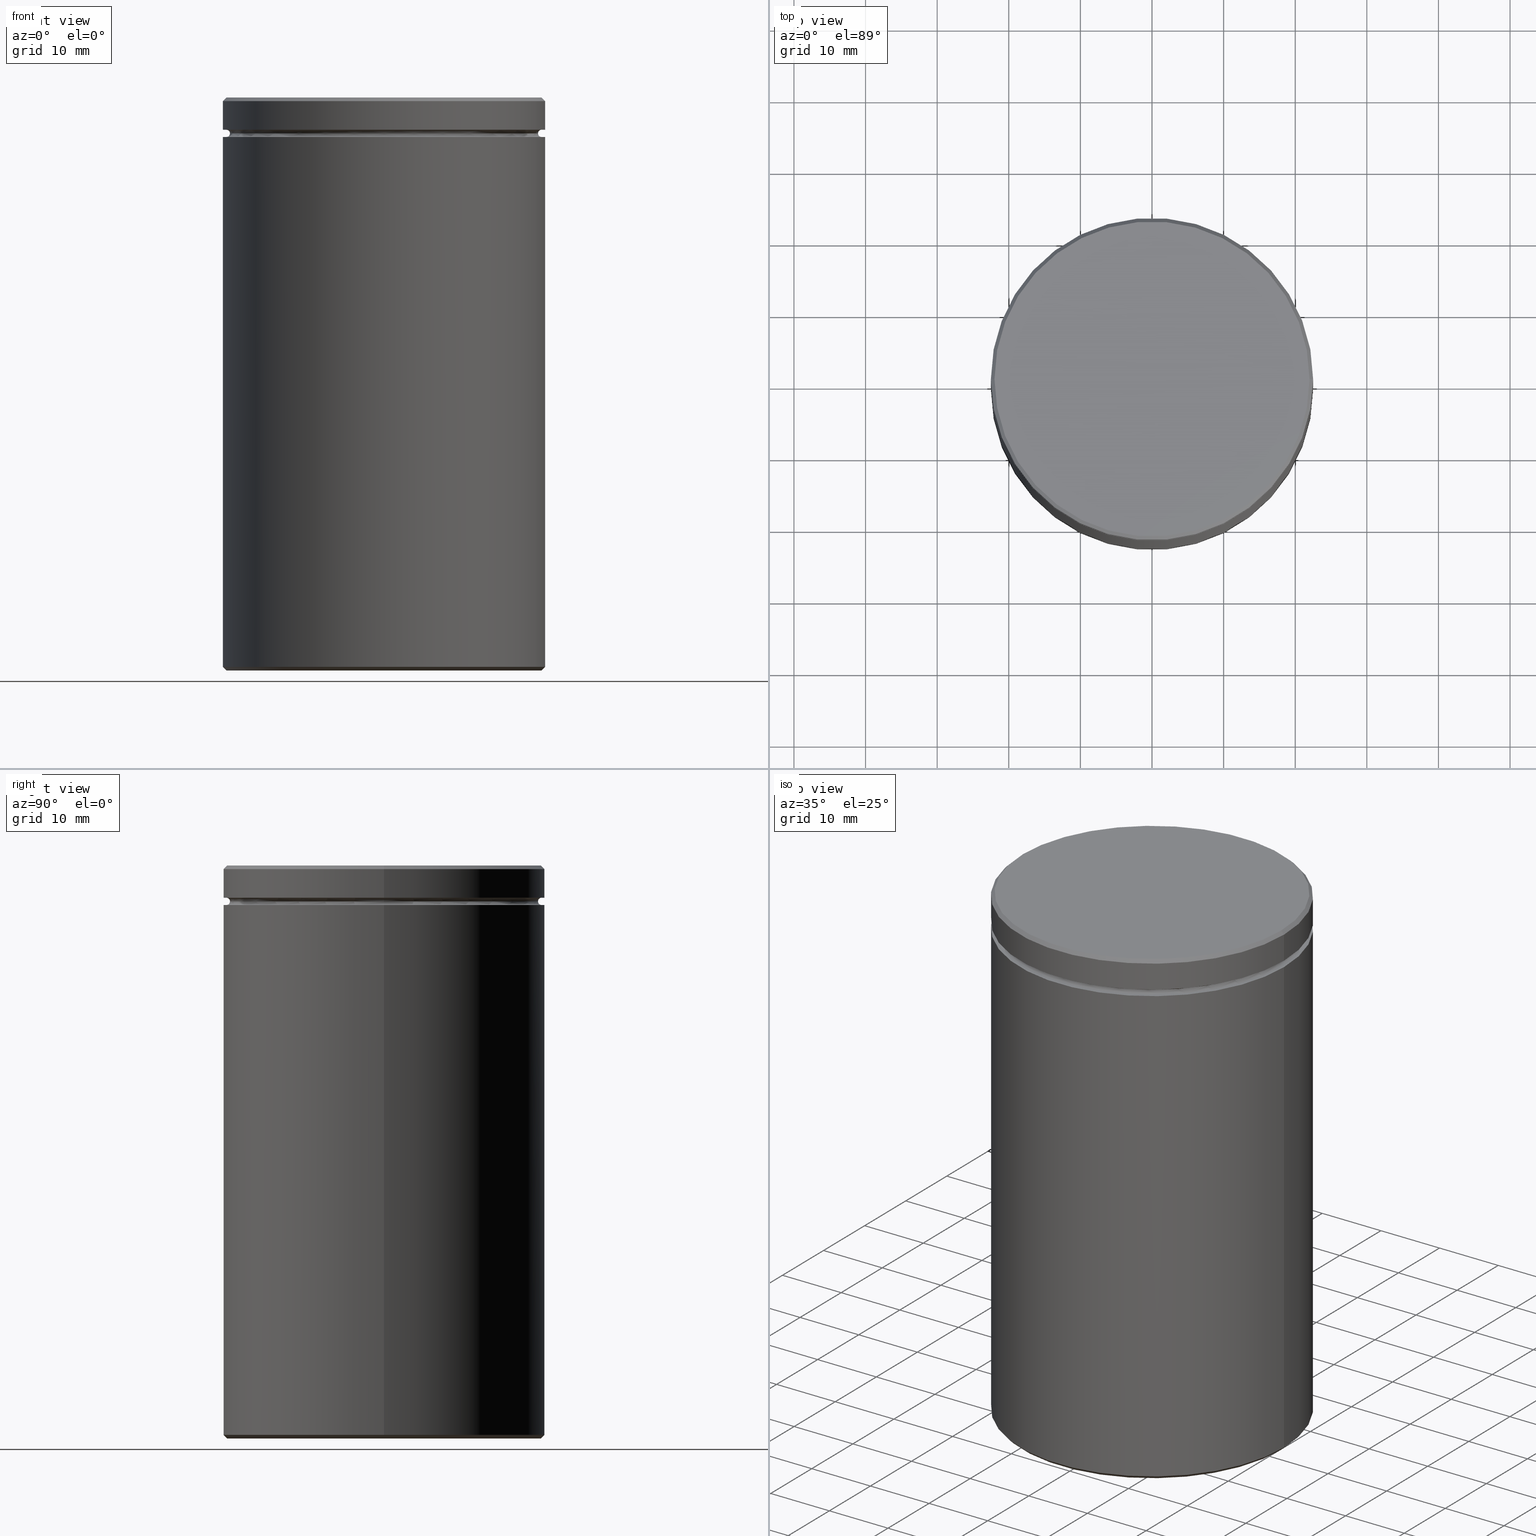
[diagram: canonical four-view strip — front | top / right | iso, engineering-drawing reading convention]
A machine part, canonical four-view strip (front | top / right | iso — engineering-drawing reading convention). The complete STEP part file that produces these views, byte-faithful:
ISO-10303-21;
HEADER;
FILE_DESCRIPTION (( 'STEP AP203' ),
    '1' );
FILE_NAME ('1421.STEP',
    '2024-01-02T17:55:48',
    ( '' ),
    ( '' ),
    'SwSTEP 2.0',
    'SolidWorks 2019',
    '' );
FILE_SCHEMA (( 'CONFIG_CONTROL_DESIGN' ));
ENDSEC;

DATA;
#1 = CARTESIAN_POINT ( 'NONE',  ( -22.50000000000000000, 2.755455298081544778E-15, 0.000000000000000000 ) ) ;
#2 = CARTESIAN_POINT ( 'NONE',  ( -21.99999999999999289, 0.000000000000000000, 0.000000000000000000 ) ) ;
#3 = EDGE_CURVE ( 'NONE', #138, #230, #540, .T. ) ;
#4 = EDGE_LOOP ( 'NONE', ( #280, #177, #48, #162 ) ) ;
#5 = FACE_BOUND ( 'NONE', #77, .T. ) ;
#6 = CARTESIAN_POINT ( 'NONE',  ( -22.50000000000000000, 2.755455298081544778E-15, -79.49999999999998579 ) ) ;
#7 = ORIENTED_EDGE ( 'NONE', *, *, #497, .F. ) ;
#8 = DIRECTION ( 'NONE',  ( -1.000000000000000000, 0.000000000000000000, 0.000000000000000000 ) ) ;
#9 = EDGE_LOOP ( 'NONE', ( #533, #306, #493, #554 ) ) ;
#10 = CYLINDRICAL_SURFACE ( 'NONE', #100, 22.50000000000000000 ) ;
#11 = CARTESIAN_POINT ( 'NONE',  ( 0.000000000000000000, 0.000000000000000000, 0.000000000000000000 ) ) ;
#12 = EDGE_CURVE ( 'NONE', #93, #368, #238, .T. ) ;
#13 = APPLICATION_CONTEXT ( 'configuration controlled 3d designs of mechanical parts and assemblies' ) ;
#14 = LINE ( 'NONE', #215, #108 ) ;
#15 = AXIS2_PLACEMENT_3D ( 'NONE', #420, #498, #107 ) ;
#16 = ORIENTED_EDGE ( 'NONE', *, *, #86, .F. ) ;
#17 = FACE_OUTER_BOUND ( 'NONE', #372, .T. ) ;
#18 = EDGE_LOOP ( 'NONE', ( #480, #236, #47, #139 ) ) ;
#19 = FACE_OUTER_BOUND ( 'NONE', #9, .T. ) ;
#20 = ORIENTED_EDGE ( 'NONE', *, *, #257, .F. ) ;
#21 = DIRECTION ( 'NONE',  ( -0.000000000000000000, -0.000000000000000000, 1.000000000000000000 ) ) ;
#22 = EDGE_CURVE ( 'NONE', #368, #93, #188, .T. ) ;
#23 = DATE_TIME_ROLE ( 'creation_date' ) ;
#24 = DIRECTION ( 'NONE',  ( 1.000000000000000000, 0.000000000000000000, 0.000000000000000000 ) ) ;
#25 = CARTESIAN_POINT ( 'NONE',  ( 0.000000000000000000, 0.000000000000000000, -80.00000000000000000 ) ) ;
#26 = DIRECTION ( 'NONE',  ( -1.000000000000000000, 0.000000000000000000, 0.000000000000000000 ) ) ;
#27 = ORIENTED_EDGE ( 'NONE', *, *, #334, .F. ) ;
#28 = APPROVAL_DATE_TIME ( #70, #156 ) ;
#29 = EDGE_CURVE ( 'NONE', #403, #329, #89, .T. ) ;
#30 = CARTESIAN_POINT ( 'NONE',  ( 0.000000000000000000, 0.000000000000000000, -4.999999999999999112 ) ) ;
#31 = CONICAL_SURFACE ( 'NONE', #549, 21.99999999999999289, 0.7853981633974482790 ) ;
#32 = ORIENTED_EDGE ( 'NONE', *, *, #240, .T. ) ;
#33 = DIRECTION ( 'NONE',  ( -0.000000000000000000, -0.000000000000000000, 1.000000000000000000 ) ) ;
#34 = CARTESIAN_POINT ( 'NONE',  ( -22.50000000000000000, 2.755455298081544778E-15, -5.500000000000000000 ) ) ;
#35 = EDGE_CURVE ( 'NONE', #41, #400, #505, .T. ) ;
#36 = ORIENTED_EDGE ( 'NONE', *, *, #191, .T. ) ;
#37 = DIRECTION ( 'NONE',  ( 1.000000000000000000, 0.000000000000000000, 0.000000000000000000 ) ) ;
#38 = EDGE_LOOP ( 'NONE', ( #20, #175, #522, #44 ) ) ;
#39 = AXIS2_PLACEMENT_3D ( 'NONE', #94, #237, #62 ) ;
#40 = DIRECTION ( 'NONE',  ( -1.000000000000000000, 0.000000000000000000, 0.000000000000000000 ) ) ;
#41 = VERTEX_POINT ( 'NONE', #121 ) ;
#42 = CARTESIAN_POINT ( 'NONE',  ( 0.000000000000000000, 0.000000000000000000, -79.49999999999998579 ) ) ;
#43 = CARTESIAN_POINT ( 'NONE',  ( 0.000000000000000000, 0.000000000000000000, 0.000000000000000000 ) ) ;
#44 = ORIENTED_EDGE ( 'NONE', *, *, #531, .T. ) ;
#45 = EDGE_CURVE ( 'NONE', #130, #136, #416, .T. ) ;
#46 = DIRECTION ( 'NONE',  ( -0.000000000000000000, -0.000000000000000000, 1.000000000000000000 ) ) ;
#47 = ORIENTED_EDGE ( 'NONE', *, *, #463, .T. ) ;
#48 = ORIENTED_EDGE ( 'NONE', *, *, #35, .F. ) ;
#49 = TOROIDAL_SURFACE ( 'NONE', #269, 22.00000000000000000, 0.5000000000000000000 ) ;
#50 = CIRCLE ( 'NONE', #436, 22.50000000000000000 ) ;
#51 = CIRCLE ( 'NONE', #569, 22.00000000000000000 ) ;
#52 = EDGE_LOOP ( 'NONE', ( #550, #263, #319, #476 ) ) ;
#53 = DIRECTION ( 'NONE',  ( 1.000000000000000000, 0.000000000000000000, 0.000000000000000000 ) ) ;
#54 = EDGE_CURVE ( 'NONE', #184, #514, #349, .T. ) ;
#55 = CARTESIAN_POINT ( 'NONE',  ( -22.00000000000000000, 2.694222958124176809E-15, -5.500000000000000000 ) ) ;
#56 = AXIS2_PLACEMENT_3D ( 'NONE', #165, #68, #388 ) ;
#57 = CONICAL_SURFACE ( 'NONE', #271, 22.50000000000000000, 0.7853981633974346233 ) ;
#58 = CARTESIAN_POINT ( 'NONE',  ( 0.000000000000000000, 0.000000000000000000, -5.500000000000000000 ) ) ;
#59 = DIRECTION ( 'NONE',  ( -1.000000000000000000, 0.000000000000000000, 0.000000000000000000 ) ) ;
#60 = DIRECTION ( 'NONE',  ( 0.000000000000000000, 0.000000000000000000, 1.000000000000000000 ) ) ;
#61 = PLANE ( 'NONE',  #147 ) ;
#62 = DIRECTION ( 'NONE',  ( -1.000000000000000000, 0.000000000000000000, -0.000000000000000000 ) ) ;
#63 = CC_DESIGN_PERSON_AND_ORGANIZATION_ASSIGNMENT ( #163, #394, ( #118 ) ) ;
#64 = DATE_TIME_ROLE ( 'classification_date' ) ;
#65 = CARTESIAN_POINT ( 'NONE',  ( 0.000000000000000000, 0.000000000000000000, -4.999999999999999112 ) ) ;
#66 = CYLINDRICAL_SURFACE ( 'NONE', #457, 22.50000000000000000 ) ;
#67 = COORDINATED_UNIVERSAL_TIME_OFFSET ( 1, 0, .AHEAD. ) ;
#68 = DIRECTION ( 'NONE',  ( -0.000000000000000000, -0.000000000000000000, -1.000000000000000000 ) ) ;
#69 = ADVANCED_FACE ( 'NONE', ( #299 ), #49, .F. ) ;
#70 = DATE_AND_TIME ( #250, #203 ) ;
#71 = CARTESIAN_POINT ( 'NONE',  ( 15.50000000000000000, 1.898202538678397557E-15, -80.00000000000000000 ) ) ;
#72 = CARTESIAN_POINT ( 'NONE',  ( -22.00000000000000000, 2.724839128102860991E-15, -80.00000000000000000 ) ) ;
#73 = CARTESIAN_POINT ( 'NONE',  ( 22.00000000000000000, 2.694222958124176809E-15, -5.000000000000000888 ) ) ;
#74 = VECTOR ( 'NONE', #389, 1000.000000000000000 ) ;
#75 = DIRECTION ( 'NONE',  ( 0.000000000000000000, 0.000000000000000000, -1.000000000000000000 ) ) ;
#76 = DIRECTION ( 'NONE',  ( -0.000000000000000000, -0.000000000000000000, 1.000000000000000000 ) ) ;
#77 = EDGE_LOOP ( 'NONE', ( #455, #7 ) ) ;
#78 = CARTESIAN_POINT ( 'NONE',  ( 0.000000000000000000, 0.000000000000000000, -80.00000000000000000 ) ) ;
#79 = CARTESIAN_POINT ( 'NONE',  ( 15.50000000000000000, 1.898202538678397557E-15, -29.00000000000000355 ) ) ;
#80 = EDGE_LOOP ( 'NONE', ( #469, #353, #207, #87 ) ) ;
#81 = DIRECTION ( 'NONE',  ( -0.000000000000000000, -0.000000000000000000, 1.000000000000000000 ) ) ;
#82 = CIRCLE ( 'NONE', #562, 0.5000000000000004441 ) ;
#83 = AXIS2_PLACEMENT_3D ( 'NONE', #537, #151, #143 ) ;
#84 = LOCAL_TIME ( 18, 55, 48.00000000000000000, #111 ) ;
#85 = ORIENTED_EDGE ( 'NONE', *, *, #397, .T. ) ;
#86 = EDGE_CURVE ( 'NONE', #170, #396, #303, .T. ) ;
#87 = ORIENTED_EDGE ( 'NONE', *, *, #283, .F. ) ;
#88 = ORIENTED_EDGE ( 'NONE', *, *, #54, .F. ) ;
#89 = CIRCLE ( 'NONE', #332, 21.99999999999999289 ) ;
#90 = AXIS2_PLACEMENT_3D ( 'NONE', #78, #517, #200 ) ;
#91 = LINE ( 'NONE', #1, #527 ) ;
#92 = ADVANCED_FACE ( 'NONE', ( #309 ), #146, .F. ) ;
#93 = VERTEX_POINT ( 'NONE', #79 ) ;
#94 = CARTESIAN_POINT ( 'NONE',  ( 0.000000000000000000, 22.50000000000000000, -4.500000000000000888 ) ) ;
#95 = DIRECTION ( 'NONE',  ( -0.000000000000000000, -0.000000000000000000, 1.000000000000000000 ) ) ;
#96 = EDGE_LOOP ( 'NONE', ( #534, #323, #218, #418 ) ) ;
#97 = EDGE_LOOP ( 'NONE', ( #410, #486, #331, #489 ) ) ;
#98 = PERSON_AND_ORGANIZATION ( #219, #564 ) ;
#99 = DIRECTION ( 'NONE',  ( -1.000000000000000000, 0.000000000000000000, 0.000000000000000000 ) ) ;
#100 = AXIS2_PLACEMENT_3D ( 'NONE', #187, #142, #328 ) ;
#101 = FACE_OUTER_BOUND ( 'NONE', #406, .T. ) ;
#102 = CARTESIAN_POINT ( 'NONE',  ( 0.000000000000000000, 0.000000000000000000, -29.00000000000000355 ) ) ;
#103 = CC_DESIGN_DATE_AND_TIME_ASSIGNMENT ( #150, #23, ( #511 ) ) ;
#104 = DIRECTION ( 'NONE',  ( 0.000000000000000000, 0.000000000000000000, -1.000000000000000000 ) ) ;
#105 = PERSON_AND_ORGANIZATION ( #219, #564 ) ;
#106 = CARTESIAN_POINT ( 'NONE',  ( 0.000000000000000000, 0.000000000000000000, -5.000000000000000888 ) ) ;
#107 = DIRECTION ( 'NONE',  ( 1.000000000000000000, 0.000000000000000000, 0.000000000000000000 ) ) ;
#108 = VECTOR ( 'NONE', #322, 1000.000000000000000 ) ;
#109 = EDGE_CURVE ( 'NONE', #130, #333, #82, .T. ) ;
#110 = CC_DESIGN_APPROVAL ( #473, ( #118 ) ) ;
#111 = COORDINATED_UNIVERSAL_TIME_OFFSET ( 1, 0, .AHEAD. ) ;
#112 = FACE_OUTER_BOUND ( 'NONE', #18, .T. ) ;
#113 = DIRECTION ( 'NONE',  ( 0.000000000000000000, 0.000000000000000000, -1.000000000000000000 ) ) ;
#114 = CARTESIAN_POINT ( 'NONE',  ( 0.000000000000000000, 0.000000000000000000, -29.00000000000000355 ) ) ;
#115 = DIRECTION ( 'NONE',  ( 0.000000000000000000, 0.000000000000000000, -1.000000000000000000 ) ) ;
#116 = DIRECTION ( 'NONE',  ( -1.000000000000000000, 0.000000000000000000, 0.000000000000000000 ) ) ;
#117 = CIRCLE ( 'NONE', #90, 15.50000000000000000 ) ;
#118 = PRODUCT_DEFINITION_FORMATION_WITH_SPECIFIED_SOURCE ( 'LIBOVOLN�', '', #251, .NOT_KNOWN. ) ;
#119 = CARTESIAN_POINT ( 'NONE',  ( -22.50000000000000000, 2.755455298081544778E-15, -4.500000000000000888 ) ) ;
#120 = EDGE_CURVE ( 'NONE', #403, #400, #355, .T. ) ;
#121 = CARTESIAN_POINT ( 'NONE',  ( -22.50000000000000000, 2.755455298081544778E-15, -0.5000000000000073275 ) ) ;
#122 = EDGE_LOOP ( 'NONE', ( #427, #267, #525, #520 ) ) ;
#123 = DIRECTION ( 'NONE',  ( -1.000000000000000000, 0.000000000000000000, 0.000000000000000000 ) ) ;
#124 = EDGE_LOOP ( 'NONE', ( #384, #235 ) ) ;
#125 = CARTESIAN_POINT ( 'NONE',  ( 0.000000000000000000, 0.000000000000000000, 0.000000000000000000 ) ) ;
#126 = ADVANCED_FACE ( 'NONE', ( #552 ), #556, .F. ) ;
#127 = CIRCLE ( 'NONE', #168, 22.00000000000000000 ) ;
#128 = EDGE_LOOP ( 'NONE', ( #414, #510, #445, #277 ) ) ;
#129 = APPROVAL_PERSON_ORGANIZATION ( #431, #156, #467 ) ;
#130 = VERTEX_POINT ( 'NONE', #252 ) ;
#131 = CYLINDRICAL_SURFACE ( 'NONE', #316, 22.50000000000000000 ) ;
#132 = ORIENTED_EDGE ( 'NONE', *, *, #152, .T. ) ;
#133 = COORDINATED_UNIVERSAL_TIME_OFFSET ( 1, 0, .AHEAD. ) ;
#134 = ORIENTED_EDGE ( 'NONE', *, *, #35, .T. ) ;
#135 = PLANE ( 'NONE',  #278 ) ;
#136 = VERTEX_POINT ( 'NONE', #346 ) ;
#137 = EDGE_CURVE ( 'NONE', #230, #138, #127, .T. ) ;
#138 = VERTEX_POINT ( 'NONE', #72 ) ;
#139 = ORIENTED_EDGE ( 'NONE', *, *, #531, .F. ) ;
#140 = AXIS2_PLACEMENT_3D ( 'NONE', #155, #256, #507 ) ;
#141 = PRODUCT_RELATED_PRODUCT_CATEGORY ( 'detail', '', ( #251 ) ) ;
#142 = DIRECTION ( 'NONE',  ( -0.000000000000000000, -0.000000000000000000, 1.000000000000000000 ) ) ;
#143 = DIRECTION ( 'NONE',  ( -1.000000000000000000, 0.000000000000000000, 0.000000000000000000 ) ) ;
#144 = DIRECTION ( 'NONE',  ( 0.000000000000000000, 0.000000000000000000, -1.000000000000000000 ) ) ;
#145 = EDGE_CURVE ( 'NONE', #514, #184, #201, .T. ) ;
#146 = TOROIDAL_SURFACE ( 'NONE', #192, 22.00000000000000000, 0.5000000000000000000 ) ;
#147 = AXIS2_PLACEMENT_3D ( 'NONE', #190, #501, #375 ) ;
#148 = CC_DESIGN_SECURITY_CLASSIFICATION ( #259, ( #118 ) ) ;
#149 = DIRECTION ( 'NONE',  ( 0.000000000000000000, 0.000000000000000000, -1.000000000000000000 ) ) ;
#150 = DATE_AND_TIME ( #424, #386 ) ;
#151 = DIRECTION ( 'NONE',  ( -0.000000000000000000, -0.000000000000000000, 1.000000000000000000 ) ) ;
#152 = EDGE_CURVE ( 'NONE', #396, #333, #359, .T. ) ;
#153 = APPROVAL_STATUS ( 'not_yet_approved' ) ;
#154 = APPROVAL_DATE_TIME ( #413, #473 ) ;
#155 = CARTESIAN_POINT ( 'NONE',  ( 0.000000000000000000, 0.000000000000000000, 0.000000000000000000 ) ) ;
#156 = APPROVAL ( #244, 'NEUR�EN�' ) ;
#157 = DIRECTION ( 'NONE',  ( -0.000000000000000000, -0.000000000000000000, 1.000000000000000000 ) ) ;
#158 = LOCAL_TIME ( 18, 55, 48.00000000000000000, #133 ) ;
#159 = COORDINATED_UNIVERSAL_TIME_OFFSET ( 1, 0, .AHEAD. ) ;
#160 = FACE_OUTER_BOUND ( 'NONE', #182, .T. ) ;
#161 = DIRECTION ( 'NONE',  ( -0.000000000000000000, -0.000000000000000000, 1.000000000000000000 ) ) ;
#162 = ORIENTED_EDGE ( 'NONE', *, *, #463, .F. ) ;
#163 = PERSON_AND_ORGANIZATION ( #219, #564 ) ;
#164 =( NAMED_UNIT ( * ) PLANE_ANGLE_UNIT ( ) SI_UNIT ( $, .RADIAN. ) );
#165 = CARTESIAN_POINT ( 'NONE',  ( 0.000000000000000000, 0.000000000000000000, -29.00000000000000355 ) ) ;
#166 = CARTESIAN_POINT ( 'NONE',  ( 22.50000000000000000, 0.000000000000000000, -79.49999999999998579 ) ) ;
#167 = EDGE_CURVE ( 'NONE', #170, #130, #314, .T. ) ;
#168 = AXIS2_PLACEMENT_3D ( 'NONE', #546, #113, #297 ) ;
#169 = TOROIDAL_SURFACE ( 'NONE', #178, 22.00000000000000000, 0.5000000000000000000 ) ;
#170 = VERTEX_POINT ( 'NONE', #444 ) ;
#171 = DIRECTION ( 'NONE',  ( 0.000000000000000000, 0.000000000000000000, -1.000000000000000000 ) ) ;
#172 = EDGE_LOOP ( 'NONE', ( #233, #132 ) ) ;
#173 = EDGE_CURVE ( 'NONE', #197, #409, #91, .T. ) ;
#174 = LINE ( 'NONE', #357, #499 ) ;
#175 = ORIENTED_EDGE ( 'NONE', *, *, #145, .T. ) ;
#176 = AXIS2_PLACEMENT_3D ( 'NONE', #330, #149, #99 ) ;
#177 = ORIENTED_EDGE ( 'NONE', *, *, #120, .T. ) ;
#178 = AXIS2_PLACEMENT_3D ( 'NONE', #106, #288, #461 ) ;
#179 = LINE ( 'NONE', #274, #506 ) ;
#180 = ORIENTED_EDGE ( 'NONE', *, *, #137, .F. ) ;
#181 = DIRECTION ( 'NONE',  ( -0.000000000000000000, -0.000000000000000000, 1.000000000000000000 ) ) ;
#182 = EDGE_LOOP ( 'NONE', ( #186, #434, #134, #356 ) ) ;
#183 = CARTESIAN_POINT ( 'NONE',  ( 0.000000000000000000, 0.000000000000000000, -4.999999999999999112 ) ) ;
#184 = VERTEX_POINT ( 'NONE', #452 ) ;
#185 = EDGE_CURVE ( 'NONE', #93, #488, #179, .T. ) ;
#186 = ORIENTED_EDGE ( 'NONE', *, *, #54, .T. ) ;
#187 = CARTESIAN_POINT ( 'NONE',  ( 0.000000000000000000, 0.000000000000000000, 0.000000000000000000 ) ) ;
#188 = CIRCLE ( 'NONE', #291, 15.50000000000000000 ) ;
#189 = AXIS2_PLACEMENT_3D ( 'NONE', #58, #460, #423 ) ;
#190 = CARTESIAN_POINT ( 'NONE',  ( 0.000000000000000000, 21.50000000000000000, -5.500000000000000000 ) ) ;
#191 = EDGE_CURVE ( 'NONE', #450, #312, #234, .T. ) ;
#192 = AXIS2_PLACEMENT_3D ( 'NONE', #475, #433, #210 ) ;
#193 = CIRCLE ( 'NONE', #258, 22.50000000000000000 ) ;
#194 = FACE_OUTER_BOUND ( 'NONE', #495, .T. ) ;
#195 = PERSON_AND_ORGANIZATION ( #219, #564 ) ;
#196 = ADVANCED_FACE ( 'NONE', ( #311 ), #57, .T. ) ;
#197 = VERTEX_POINT ( 'NONE', #6 ) ;
#198 = CARTESIAN_POINT ( 'NONE',  ( 0.000000000000000000, 0.000000000000000000, -4.500000000000000888 ) ) ;
#199 = SHAPE_DEFINITION_REPRESENTATION ( #302, #208 ) ;
#200 = DIRECTION ( 'NONE',  ( -1.000000000000000000, 0.000000000000000000, 0.000000000000000000 ) ) ;
#201 = CIRCLE ( 'NONE', #526, 22.50000000000000000 ) ;
#202 = CIRCLE ( 'NONE', #15, 22.50000000000000000 ) ;
#203 = LOCAL_TIME ( 18, 55, 48.00000000000000000, #159 ) ;
#204 = DIRECTION ( 'NONE',  ( -1.000000000000000000, -1.224646799147349509E-16, 0.000000000000000000 ) ) ;
#205 = CARTESIAN_POINT ( 'NONE',  ( 0.000000000000000000, 0.000000000000000000, -5.500000000000000000 ) ) ;
#206 = APPLICATION_PROTOCOL_DEFINITION ( 'international standard', 'config_control_design', 1994, #13 ) ;
#207 = ORIENTED_EDGE ( 'NONE', *, *, #497, .T. ) ;
#208 = ADVANCED_BREP_SHAPE_REPRESENTATION ( '1421', ( #324, #318 ), #379 ) ;
#209 = CC_DESIGN_PERSON_AND_ORGANIZATION_ASSIGNMENT ( #105, #243, ( #511 ) ) ;
#210 = DIRECTION ( 'NONE',  ( -1.000000000000000000, 0.000000000000000000, 0.000000000000000000 ) ) ;
#211 = CARTESIAN_POINT ( 'NONE',  ( 22.50000000000000000, 0.000000000000000000, -0.5000000000000073275 ) ) ;
#212 = DIRECTION ( 'NONE',  ( 1.000000000000000000, 0.000000000000000000, 0.000000000000000000 ) ) ;
#213 = PLANE ( 'NONE',  #229 ) ;
#214 = ORIENTED_EDGE ( 'NONE', *, *, #12, .T. ) ;
#215 = CARTESIAN_POINT ( 'NONE',  ( -15.50000000000000000, 0.000000000000000000, -29.00000000000000355 ) ) ;
#216 = CARTESIAN_POINT ( 'NONE',  ( 0.000000000000000000, 0.000000000000000000, 0.000000000000000000 ) ) ;
#217 = AXIS2_PLACEMENT_3D ( 'NONE', #102, #144, #59 ) ;
#218 = ORIENTED_EDGE ( 'NONE', *, *, #283, .T. ) ;
#219 = PERSON ( 'NEUR�EN�', 'NEUR�EN�', 'NEUR�EN�', ('NEUR�EN�'), ('NEUR�EN�'), ('NEUR�EN�') ) ;
#220 = AXIS2_PLACEMENT_3D ( 'NONE', #295, #512, #116 ) ;
#221 = EDGE_CURVE ( 'NONE', #450, #197, #292, .T. ) ;
#222 = DIRECTION ( 'NONE',  ( -0.000000000000000000, -0.000000000000000000, 1.000000000000000000 ) ) ;
#223 = CARTESIAN_POINT ( 'NONE',  ( -22.00000000000000000, 0.000000000000000000, -5.000000000000000888 ) ) ;
#224 = ORIENTED_EDGE ( 'NONE', *, *, #428, .F. ) ;
#225 = FACE_OUTER_BOUND ( 'NONE', #128, .T. ) ;
#226 = ORIENTED_EDGE ( 'NONE', *, *, #22, .T. ) ;
#227 = APPROVAL_ROLE ( '' ) ;
#228 = CARTESIAN_POINT ( 'NONE',  ( 0.000000000000000000, 0.000000000000000000, -79.49999999999998579 ) ) ;
#229 = AXIS2_PLACEMENT_3D ( 'NONE', #43, #361, #485 ) ;
#230 = VERTEX_POINT ( 'NONE', #405 ) ;
#231 = CALENDAR_DATE ( 2024, 2, 1 ) ;
#232 = EDGE_CURVE ( 'NONE', #170, #528, #518, .T. ) ;
#233 = ORIENTED_EDGE ( 'NONE', *, *, #298, .T. ) ;
#234 = LINE ( 'NONE', #273, #417 ) ;
#235 = ORIENTED_EDGE ( 'NONE', *, *, #563, .T. ) ;
#236 = ORIENTED_EDGE ( 'NONE', *, *, #446, .F. ) ;
#237 = DIRECTION ( 'NONE',  ( 0.000000000000000000, 0.000000000000000000, -1.000000000000000000 ) ) ;
#238 = CIRCLE ( 'NONE', #217, 15.50000000000000000 ) ;
#239 = AXIS2_PLACEMENT_3D ( 'NONE', #183, #487, #451 ) ;
#240 = EDGE_CURVE ( 'NONE', #230, #450, #174, .T. ) ;
#241 = APPLICATION_PROTOCOL_DEFINITION ( 'international standard', 'config_control_design', 1994, #545 ) ;
#242 = ADVANCED_FACE ( 'NONE', ( #371, #17 ), #535, .T. ) ;
#243 = PERSON_AND_ORGANIZATION_ROLE ( 'creator' ) ;
#244 = APPROVAL_STATUS ( 'not_yet_approved' ) ;
#245 = CLOSED_SHELL ( 'NONE', ( #92, #370, #196, #289, #126, #376, #521, #551, #459, #382, #242, #327, #266, #491, #479, #538, #362, #69, #341 ) ) ;
#246 = AXIS2_PLACEMENT_3D ( 'NONE', #25, #544, #307 ) ;
#247 = FACE_OUTER_BOUND ( 'NONE', #529, .T. ) ;
#248 = CARTESIAN_POINT ( 'NONE',  ( 0.000000000000000000, 0.000000000000000000, 0.000000000000000000 ) ) ;
#249 = APPROVAL_STATUS ( 'not_yet_approved' ) ;
#250 = CALENDAR_DATE ( 2024, 2, 1 ) ;
#251 = PRODUCT ( '1421', '1421', '', ( #281 ) ) ;
#252 = CARTESIAN_POINT ( 'NONE',  ( 21.50000000000000000, 0.000000000000000000, -4.999999999999999112 ) ) ;
#253 = PERSON_AND_ORGANIZATION_ROLE ( 'design_owner' ) ;
#254 = FACE_OUTER_BOUND ( 'NONE', #279, .T. ) ;
#255 = CARTESIAN_POINT ( 'NONE',  ( 0.000000000000000000, 0.000000000000000000, -4.500000000000000888 ) ) ;
#256 = DIRECTION ( 'NONE',  ( -0.000000000000000000, -0.000000000000000000, 1.000000000000000000 ) ) ;
#257 = EDGE_CURVE ( 'NONE', #514, #41, #286, .T. ) ;
#258 = AXIS2_PLACEMENT_3D ( 'NONE', #315, #76, #123 ) ;
#259 = SECURITY_CLASSIFICATION ( '', '', #558 ) ;
#260 = DIRECTION ( 'NONE',  ( -1.000000000000000000, 1.224646799147349509E-16, 0.000000000000000000 ) ) ;
#261 = DIRECTION ( 'NONE',  ( 1.000000000000000000, 0.000000000000000000, 0.000000000000000000 ) ) ;
#262 = DIRECTION ( 'NONE',  ( 1.000000000000000000, 0.000000000000000000, 0.000000000000000000 ) ) ;
#263 = ORIENTED_EDGE ( 'NONE', *, *, #428, .T. ) ;
#264 =( LENGTH_UNIT ( ) NAMED_UNIT ( * ) SI_UNIT ( .MILLI., .METRE. ) );
#265 = DIRECTION ( 'NONE',  ( 0.000000000000000000, -1.000000000000000000, 0.000000000000000000 ) ) ;
#266 = ADVANCED_FACE ( 'NONE', ( #194 ), #66, .T. ) ;
#267 = ORIENTED_EDGE ( 'NONE', *, *, #45, .T. ) ;
#268 = DIRECTION ( 'NONE',  ( 1.000000000000000000, 0.000000000000000000, 0.000000000000000000 ) ) ;
#269 = AXIS2_PLACEMENT_3D ( 'NONE', #30, #470, #342 ) ;
#270 = LINE ( 'NONE', #402, #568 ) ;
#271 = AXIS2_PLACEMENT_3D ( 'NONE', #42, #46, #268 ) ;
#272 = CARTESIAN_POINT ( 'NONE',  ( -15.50000000000000000, 0.000000000000000000, -29.00000000000000355 ) ) ;
#273 = CARTESIAN_POINT ( 'NONE',  ( 22.50000000000000000, 0.000000000000000000, 0.000000000000000000 ) ) ;
#274 = CARTESIAN_POINT ( 'NONE',  ( 15.50000000000000000, 1.898202538678397557E-15, -29.00000000000000355 ) ) ;
#275 = CC_DESIGN_PERSON_AND_ORGANIZATION_ASSIGNMENT ( #300, #338, ( #118 ) ) ;
#276 = CIRCLE ( 'NONE', #472, 21.99999999999999289 ) ;
#277 = ORIENTED_EDGE ( 'NONE', *, *, #109, .F. ) ;
#278 = AXIS2_PLACEMENT_3D ( 'NONE', #504, #532, #543 ) ;
#279 = EDGE_LOOP ( 'NONE', ( #226, #214 ) ) ;
#280 = ORIENTED_EDGE ( 'NONE', *, *, #29, .F. ) ;
#281 = MECHANICAL_CONTEXT ( 'NONE', #545, 'mechanical' ) ;
#282 = DIRECTION ( 'NONE',  ( -0.000000000000000000, -0.000000000000000000, 1.000000000000000000 ) ) ;
#283 = EDGE_CURVE ( 'NONE', #368, #310, #14, .T. ) ;
#284 = CIRCLE ( 'NONE', #360, 21.50000000000000000 ) ;
#285 = CC_DESIGN_APPROVAL ( #321, ( #511 ) ) ;
#286 = LINE ( 'NONE', #462, #373 ) ;
#287 = DATE_AND_TIME ( #294, #84 ) ;
#288 = DIRECTION ( 'NONE',  ( 0.000000000000000000, 0.000000000000000000, -1.000000000000000000 ) ) ;
#289 = ADVANCED_FACE ( 'NONE', ( #335 ), #31, .T. ) ;
#290 = DIRECTION ( 'NONE',  ( -0.000000000000000000, -0.000000000000000000, -1.000000000000000000 ) ) ;
#291 = AXIS2_PLACEMENT_3D ( 'NONE', #500, #293, #26 ) ;
#292 = CIRCLE ( 'NONE', #541, 22.50000000000000000 ) ;
#293 = DIRECTION ( 'NONE',  ( 0.000000000000000000, 0.000000000000000000, -1.000000000000000000 ) ) ;
#294 = CALENDAR_DATE ( 2024, 2, 1 ) ;
#295 = CARTESIAN_POINT ( 'NONE',  ( 0.000000000000000000, 0.000000000000000000, 0.000000000000000000 ) ) ;
#296 =( NAMED_UNIT ( * ) SI_UNIT ( $, .STERADIAN. ) SOLID_ANGLE_UNIT ( ) );
#297 = DIRECTION ( 'NONE',  ( -1.000000000000000000, 0.000000000000000000, 0.000000000000000000 ) ) ;
#298 = EDGE_CURVE ( 'NONE', #333, #396, #443, .T. ) ;
#299 = FACE_OUTER_BOUND ( 'NONE', #530, .T. ) ;
#300 = PERSON_AND_ORGANIZATION ( #219, #564 ) ;
#301 = FACE_OUTER_BOUND ( 'NONE', #561, .T. ) ;
#302 = PRODUCT_DEFINITION_SHAPE ( 'NONE', 'NONE',  #511 ) ;
#303 = CIRCLE ( 'NONE', #377, 0.5000000000000004441 ) ;
#304 = TOROIDAL_SURFACE ( 'NONE', #239, 22.00000000000000000, 0.5000000000000000000 ) ;
#305 = CARTESIAN_POINT ( 'NONE',  ( 0.000000000000000000, 0.000000000000000000, -5.500000000000000000 ) ) ;
#306 = ORIENTED_EDGE ( 'NONE', *, *, #348, .T. ) ;
#307 = DIRECTION ( 'NONE',  ( -1.000000000000000000, 0.000000000000000000, 0.000000000000000000 ) ) ;
#308 = EDGE_CURVE ( 'NONE', #528, #136, #408, .T. ) ;
#309 = FACE_OUTER_BOUND ( 'NONE', #122, .T. ) ;
#310 = VERTEX_POINT ( 'NONE', #496 ) ;
#311 = FACE_OUTER_BOUND ( 'NONE', #52, .T. ) ;
#312 = VERTEX_POINT ( 'NONE', #456 ) ;
#313 = DIRECTION ( 'NONE',  ( 1.000000000000000000, 0.000000000000000000, 0.000000000000000000 ) ) ;
#314 = CIRCLE ( 'NONE', #481, 21.50000000000000000 ) ;
#315 = CARTESIAN_POINT ( 'NONE',  ( 0.000000000000000000, 0.000000000000000000, -79.49999999999998579 ) ) ;
#316 = AXIS2_PLACEMENT_3D ( 'NONE', #320, #367, #53 ) ;
#317 = ORIENTED_EDGE ( 'NONE', *, *, #3, .T. ) ;
#318 = AXIS2_PLACEMENT_3D ( 'NONE', #11, #60, #422 ) ;
#319 = ORIENTED_EDGE ( 'NONE', *, *, #221, .F. ) ;
#320 = CARTESIAN_POINT ( 'NONE',  ( 0.000000000000000000, 0.000000000000000000, 0.000000000000000000 ) ) ;
#321 = APPROVAL ( #153, 'NEUR�EN�' ) ;
#322 = DIRECTION ( 'NONE',  ( -0.000000000000000000, -0.000000000000000000, -1.000000000000000000 ) ) ;
#323 = ORIENTED_EDGE ( 'NONE', *, *, #22, .F. ) ;
#324 = MANIFOLD_SOLID_BREP ( 'Zaoblit1', #245 ) ;
#325 = CARTESIAN_POINT ( 'NONE',  ( 0.000000000000000000, 0.000000000000000000, -4.500000000000000888 ) ) ;
#326 = CIRCLE ( 'NONE', #465, 22.50000000000000000 ) ;
#327 = ADVANCED_FACE ( 'NONE', ( #419, #101 ), #61, .T. ) ;
#328 = DIRECTION ( 'NONE',  ( 1.000000000000000000, 0.000000000000000000, 0.000000000000000000 ) ) ;
#329 = VERTEX_POINT ( 'NONE', #539 ) ;
#330 = CARTESIAN_POINT ( 'NONE',  ( 0.000000000000000000, 0.000000000000000000, -80.00000000000000000 ) ) ;
#331 = ORIENTED_EDGE ( 'NONE', *, *, #397, .F. ) ;
#332 = AXIS2_PLACEMENT_3D ( 'NONE', #216, #441, #352 ) ;
#333 = VERTEX_POINT ( 'NONE', #381 ) ;
#334 = EDGE_CURVE ( 'NONE', #409, #312, #202, .T. ) ;
#335 = FACE_OUTER_BOUND ( 'NONE', #4, .T. ) ;
#336 = CARTESIAN_POINT ( 'NONE',  ( 0.000000000000000000, 0.000000000000000000, -79.49999999999998579 ) ) ;
#337 = DATE_AND_TIME ( #542, #458 ) ;
#338 = PERSON_AND_ORGANIZATION_ROLE ( 'creator' ) ;
#339 = CONICAL_SURFACE ( 'NONE', #350, 22.50000000000000000, 0.7853981633974346233 ) ;
#340 = CONICAL_SURFACE ( 'NONE', #220, 21.99999999999999289, 0.7853981633974482790 ) ;
#341 = ADVANCED_FACE ( 'NONE', ( #19 ), #169, .F. ) ;
#342 = DIRECTION ( 'NONE',  ( 1.000000000000000000, 0.000000000000000000, 0.000000000000000000 ) ) ;
#343 = ORIENTED_EDGE ( 'NONE', *, *, #404, .F. ) ;
#344 = DIRECTION ( 'NONE',  ( 1.000000000000000000, 0.000000000000000000, 0.000000000000000000 ) ) ;
#345 = DIRECTION ( 'NONE',  ( 0.000000000000000000, 0.000000000000000000, -1.000000000000000000 ) ) ;
#346 = CARTESIAN_POINT ( 'NONE',  ( 22.00000000000000000, 2.694222958124176809E-15, -4.500000000000000888 ) ) ;
#347 = PERSON_AND_ORGANIZATION ( #219, #564 ) ;
#348 = EDGE_CURVE ( 'NONE', #130, #170, #284, .T. ) ;
#349 = CIRCLE ( 'NONE', #515, 22.50000000000000000 ) ;
#350 = AXIS2_PLACEMENT_3D ( 'NONE', #336, #222, #313 ) ;
#351 = CC_DESIGN_APPROVAL ( #156, ( #259 ) ) ;
#352 = DIRECTION ( 'NONE',  ( 1.000000000000000000, 0.000000000000000000, 0.000000000000000000 ) ) ;
#353 = ORIENTED_EDGE ( 'NONE', *, *, #185, .T. ) ;
#354 = CC_DESIGN_DATE_AND_TIME_ASSIGNMENT ( #287, #64, ( #259 ) ) ;
#355 = LINE ( 'NONE', #474, #425 ) ;
#356 = ORIENTED_EDGE ( 'NONE', *, *, #411, .F. ) ;
#357 = CARTESIAN_POINT ( 'NONE',  ( 22.50000000000000000, 0.000000000000000000, -79.49999999999998579 ) ) ;
#358 = CARTESIAN_POINT ( 'NONE',  ( -22.50000000000000000, 2.755455298081544778E-15, -79.49999999999998579 ) ) ;
#359 = CIRCLE ( 'NONE', #536, 22.00000000000000000 ) ;
#360 = AXIS2_PLACEMENT_3D ( 'NONE', #65, #426, #380 ) ;
#361 = DIRECTION ( 'NONE',  ( 0.000000000000000000, -0.000000000000000000, 1.000000000000000000 ) ) ;
#362 = ADVANCED_FACE ( 'NONE', ( #247 ), #339, .T. ) ;
#363 = ORIENTED_EDGE ( 'NONE', *, *, #109, .T. ) ;
#364 = DIRECTION ( 'NONE',  ( -0.7071067811865474617, 0.000000000000000000, -0.7071067811865474617 ) ) ;
#365 = ORIENTED_EDGE ( 'NONE', *, *, #446, .T. ) ;
#366 = ORIENTED_EDGE ( 'NONE', *, *, #348, .F. ) ;
#367 = DIRECTION ( 'NONE',  ( -0.000000000000000000, -0.000000000000000000, 1.000000000000000000 ) ) ;
#368 = VERTEX_POINT ( 'NONE', #272 ) ;
#369 = DESIGN_CONTEXT ( 'detailed design', #13, 'design' ) ;
#370 = ADVANCED_FACE ( 'NONE', ( #225 ), #304, .F. ) ;
#371 = FACE_BOUND ( 'NONE', #124, .T. ) ;
#372 = EDGE_LOOP ( 'NONE', ( #88, #454 ) ) ;
#373 = VECTOR ( 'NONE', #21, 1000.000000000000000 ) ;
#374 = DIRECTION ( 'NONE',  ( -1.000000000000000000, 0.000000000000000000, 0.000000000000000000 ) ) ;
#375 = DIRECTION ( 'NONE',  ( 1.000000000000000000, 0.000000000000000000, 0.000000000000000000 ) ) ;
#376 = ADVANCED_FACE ( 'NONE', ( #567 ), #131, .T. ) ;
#377 = AXIS2_PLACEMENT_3D ( 'NONE', #383, #565, #260 ) ;
#378 = AXIS2_PLACEMENT_3D ( 'NONE', #559, #171, #468 ) ;
#379 =( GEOMETRIC_REPRESENTATION_CONTEXT ( 3 ) GLOBAL_UNCERTAINTY_ASSIGNED_CONTEXT ( ( #503 ) ) GLOBAL_UNIT_ASSIGNED_CONTEXT ( ( #264, #164, #296 ) ) REPRESENTATION_CONTEXT ( 'NONE', 'WORKASPACE' ) );
#380 = DIRECTION ( 'NONE',  ( 1.000000000000000000, 0.000000000000000000, 0.000000000000000000 ) ) ;
#381 = CARTESIAN_POINT ( 'NONE',  ( 22.00000000000000000, 0.000000000000000000, -5.500000000000000000 ) ) ;
#382 = ADVANCED_FACE ( 'NONE', ( #415 ), #10, .T. ) ;
#383 = CARTESIAN_POINT ( 'NONE',  ( -22.00000000000000000, 2.694222958124176809E-15, -4.999999999999999112 ) ) ;
#384 = ORIENTED_EDGE ( 'NONE', *, *, #308, .T. ) ;
#385 = AXIS2_PLACEMENT_3D ( 'NONE', #223, #401, #566 ) ;
#386 = LOCAL_TIME ( 18, 55, 48.00000000000000000, #67 ) ;
#387 = APPROVAL_PERSON_ORGANIZATION ( #390, #321, #464 ) ;
#388 = DIRECTION ( 'NONE',  ( -1.000000000000000000, 0.000000000000000000, 0.000000000000000000 ) ) ;
#389 = DIRECTION ( 'NONE',  ( -0.7071067811865378028, 8.659560562354814529E-17, 0.7071067811865573427 ) ) ;
#390 = PERSON_AND_ORGANIZATION ( #219, #564 ) ;
#391 = DIRECTION ( 'NONE',  ( 0.7071067811865474617, 8.659560562354932858E-17, -0.7071067811865474617 ) ) ;
#392 = DIRECTION ( 'NONE',  ( -0.000000000000000000, -0.000000000000000000, 1.000000000000000000 ) ) ;
#393 = ORIENTED_EDGE ( 'NONE', *, *, #29, .T. ) ;
#394 = PERSON_AND_ORGANIZATION_ROLE ( 'design_supplier' ) ;
#395 = PLANE ( 'NONE',  #378 ) ;
#396 = VERTEX_POINT ( 'NONE', #55 ) ;
#397 = EDGE_CURVE ( 'NONE', #312, #409, #50, .T. ) ;
#398 = VECTOR ( 'NONE', #364, 1000.000000000000114 ) ;
#399 = DIRECTION ( 'NONE',  ( -1.224646799147353207E-16, 1.000000000000000000, 0.000000000000000000 ) ) ;
#400 = VERTEX_POINT ( 'NONE', #211 ) ;
#401 = DIRECTION ( 'NONE',  ( -0.000000000000000000, -1.000000000000000000, -0.000000000000000000 ) ) ;
#402 = CARTESIAN_POINT ( 'NONE',  ( 22.50000000000000000, 0.000000000000000000, 0.000000000000000000 ) ) ;
#403 = VERTEX_POINT ( 'NONE', #478 ) ;
#404 = EDGE_CURVE ( 'NONE', #197, #450, #193, .T. ) ;
#405 = CARTESIAN_POINT ( 'NONE',  ( 22.00000000000000000, 0.000000000000000000, -80.00000000000000000 ) ) ;
#406 = EDGE_LOOP ( 'NONE', ( #85, #484 ) ) ;
#407 = AXIS2_PLACEMENT_3D ( 'NONE', #73, #399, #204 ) ;
#408 = CIRCLE ( 'NONE', #83, 22.00000000000000000 ) ;
#409 = VERTEX_POINT ( 'NONE', #34 ) ;
#410 = ORIENTED_EDGE ( 'NONE', *, *, #221, .T. ) ;
#411 = EDGE_CURVE ( 'NONE', #184, #400, #270, .T. ) ;
#412 = DIRECTION ( 'NONE',  ( -0.000000000000000000, -0.000000000000000000, 1.000000000000000000 ) ) ;
#413 = DATE_AND_TIME ( #231, #158 ) ;
#414 = ORIENTED_EDGE ( 'NONE', *, *, #167, .F. ) ;
#415 = FACE_OUTER_BOUND ( 'NONE', #38, .T. ) ;
#416 = CIRCLE ( 'NONE', #407, 0.5000000000000004441 ) ;
#417 = VECTOR ( 'NONE', #81, 1000.000000000000000 ) ;
#418 = ORIENTED_EDGE ( 'NONE', *, *, #502, .T. ) ;
#419 = FACE_BOUND ( 'NONE', #172, .T. ) ;
#420 = CARTESIAN_POINT ( 'NONE',  ( 0.000000000000000000, 0.000000000000000000, -5.500000000000000000 ) ) ;
#421 = CC_DESIGN_PERSON_AND_ORGANIZATION_ASSIGNMENT ( #98, #253, ( #251 ) ) ;
#422 = DIRECTION ( 'NONE',  ( 1.000000000000000000, 0.000000000000000000, 0.000000000000000000 ) ) ;
#423 = DIRECTION ( 'NONE',  ( 1.000000000000000000, 0.000000000000000000, 0.000000000000000000 ) ) ;
#424 = CALENDAR_DATE ( 2024, 2, 1 ) ;
#425 = VECTOR ( 'NONE', #391, 1000.000000000000114 ) ;
#426 = DIRECTION ( 'NONE',  ( -0.000000000000000000, -0.000000000000000000, 1.000000000000000000 ) ) ;
#427 = ORIENTED_EDGE ( 'NONE', *, *, #167, .T. ) ;
#428 = EDGE_CURVE ( 'NONE', #138, #197, #524, .T. ) ;
#429 = DIRECTION ( 'NONE',  ( -1.000000000000000000, 0.000000000000000000, 0.000000000000000000 ) ) ;
#430 = CARTESIAN_POINT ( 'NONE',  ( 0.000000000000000000, 0.000000000000000000, 0.000000000000000000 ) ) ;
#431 = PERSON_AND_ORGANIZATION ( #219, #564 ) ;
#432 = CYLINDRICAL_SURFACE ( 'NONE', #453, 15.50000000000000000 ) ;
#433 = DIRECTION ( 'NONE',  ( 0.000000000000000000, 0.000000000000000000, -1.000000000000000000 ) ) ;
#434 = ORIENTED_EDGE ( 'NONE', *, *, #257, .T. ) ;
#435 = CARTESIAN_POINT ( 'NONE',  ( -22.00000000000000000, 0.000000000000000000, -4.500000000000000888 ) ) ;
#436 = AXIS2_PLACEMENT_3D ( 'NONE', #205, #471, #261 ) ;
#437 = CARTESIAN_POINT ( 'NONE',  ( 22.00000000000000000, 0.000000000000000000, -4.999999999999999112 ) ) ;
#438 = ORIENTED_EDGE ( 'NONE', *, *, #152, .F. ) ;
#439 = CC_DESIGN_PERSON_AND_ORGANIZATION_ASSIGNMENT ( #347, #516, ( #259 ) ) ;
#440 = CARTESIAN_POINT ( 'NONE',  ( 0.000000000000000000, 0.000000000000000000, -4.999999999999999112 ) ) ;
#441 = DIRECTION ( 'NONE',  ( -0.000000000000000000, -0.000000000000000000, 1.000000000000000000 ) ) ;
#442 = ORIENTED_EDGE ( 'NONE', *, *, #404, .T. ) ;
#443 = CIRCLE ( 'NONE', #189, 22.00000000000000000 ) ;
#444 = CARTESIAN_POINT ( 'NONE',  ( -21.50000000000000000, 2.663606788145493022E-15, -4.999999999999999112 ) ) ;
#445 = ORIENTED_EDGE ( 'NONE', *, *, #298, .F. ) ;
#446 = EDGE_CURVE ( 'NONE', #329, #403, #276, .T. ) ;
#447 = DIRECTION ( 'NONE',  ( -0.000000000000000000, -0.000000000000000000, -1.000000000000000000 ) ) ;
#448 = EDGE_LOOP ( 'NONE', ( #365, #393 ) ) ;
#449 = LINE ( 'NONE', #2, #398 ) ;
#450 = VERTEX_POINT ( 'NONE', #166 ) ;
#451 = DIRECTION ( 'NONE',  ( 1.000000000000000000, 0.000000000000000000, 0.000000000000000000 ) ) ;
#452 = CARTESIAN_POINT ( 'NONE',  ( 22.50000000000000000, 0.000000000000000000, -4.500000000000000888 ) ) ;
#453 = AXIS2_PLACEMENT_3D ( 'NONE', #114, #290, #429 ) ;
#454 = ORIENTED_EDGE ( 'NONE', *, *, #145, .F. ) ;
#455 = ORIENTED_EDGE ( 'NONE', *, *, #502, .F. ) ;
#456 = CARTESIAN_POINT ( 'NONE',  ( 22.50000000000000000, 0.000000000000000000, -5.500000000000000000 ) ) ;
#457 = AXIS2_PLACEMENT_3D ( 'NONE', #248, #282, #24 ) ;
#458 = LOCAL_TIME ( 18, 55, 48.00000000000000000, #553 ) ;
#459 = ADVANCED_FACE ( 'NONE', ( #560 ), #213, .T. ) ;
#460 = DIRECTION ( 'NONE',  ( 0.000000000000000000, 0.000000000000000000, -1.000000000000000000 ) ) ;
#461 = DIRECTION ( 'NONE',  ( -1.000000000000000000, 0.000000000000000000, 0.000000000000000000 ) ) ;
#462 = CARTESIAN_POINT ( 'NONE',  ( -22.50000000000000000, 2.755455298081544778E-15, 0.000000000000000000 ) ) ;
#463 = EDGE_CURVE ( 'NONE', #329, #41, #449, .T. ) ;
#464 = APPROVAL_ROLE ( '' ) ;
#465 = AXIS2_PLACEMENT_3D ( 'NONE', #555, #345, #37 ) ;
#466 = CYLINDRICAL_SURFACE ( 'NONE', #140, 22.50000000000000000 ) ;
#467 = APPROVAL_ROLE ( '' ) ;
#468 = DIRECTION ( 'NONE',  ( -1.000000000000000000, 0.000000000000000000, -0.000000000000000000 ) ) ;
#469 = ORIENTED_EDGE ( 'NONE', *, *, #12, .F. ) ;
#470 = DIRECTION ( 'NONE',  ( -0.000000000000000000, -0.000000000000000000, 1.000000000000000000 ) ) ;
#471 = DIRECTION ( 'NONE',  ( -0.000000000000000000, -0.000000000000000000, 1.000000000000000000 ) ) ;
#472 = AXIS2_PLACEMENT_3D ( 'NONE', #125, #483, #557 ) ;
#473 = APPROVAL ( #249, 'NEUR�EN�' ) ;
#474 = CARTESIAN_POINT ( 'NONE',  ( 21.99999999999999289, 2.694222958124176020E-15, 0.000000000000000000 ) ) ;
#475 = CARTESIAN_POINT ( 'NONE',  ( 0.000000000000000000, 0.000000000000000000, -5.000000000000000888 ) ) ;
#476 = ORIENTED_EDGE ( 'NONE', *, *, #240, .F. ) ;
#477 = DIRECTION ( 'NONE',  ( 1.000000000000000000, 0.000000000000000000, 0.000000000000000000 ) ) ;
#478 = CARTESIAN_POINT ( 'NONE',  ( 21.99999999999999289, 2.724839128102860202E-15, 0.000000000000000000 ) ) ;
#479 = ADVANCED_FACE ( 'NONE', ( #254 ), #395, .T. ) ;
#480 = ORIENTED_EDGE ( 'NONE', *, *, #120, .F. ) ;
#481 = AXIS2_PLACEMENT_3D ( 'NONE', #440, #33, #477 ) ;
#482 = APPROVAL_PERSON_ORGANIZATION ( #195, #473, #227 ) ;
#483 = DIRECTION ( 'NONE',  ( -0.000000000000000000, -0.000000000000000000, 1.000000000000000000 ) ) ;
#484 = ORIENTED_EDGE ( 'NONE', *, *, #334, .T. ) ;
#485 = DIRECTION ( 'NONE',  ( 1.000000000000000000, 0.000000000000000000, 0.000000000000000000 ) ) ;
#486 = ORIENTED_EDGE ( 'NONE', *, *, #173, .T. ) ;
#487 = DIRECTION ( 'NONE',  ( -0.000000000000000000, -0.000000000000000000, 1.000000000000000000 ) ) ;
#488 = VERTEX_POINT ( 'NONE', #71 ) ;
#489 = ORIENTED_EDGE ( 'NONE', *, *, #191, .F. ) ;
#490 = ORIENTED_EDGE ( 'NONE', *, *, #137, .T. ) ;
#491 = ADVANCED_FACE ( 'NONE', ( #509 ), #432, .F. ) ;
#492 = CIRCLE ( 'NONE', #246, 15.50000000000000000 ) ;
#493 = ORIENTED_EDGE ( 'NONE', *, *, #232, .T. ) ;
#494 = ORIENTED_EDGE ( 'NONE', *, *, #173, .F. ) ;
#495 = EDGE_LOOP ( 'NONE', ( #494, #442, #36, #27 ) ) ;
#496 = CARTESIAN_POINT ( 'NONE',  ( -15.50000000000000000, 0.000000000000000000, -80.00000000000000000 ) ) ;
#497 = EDGE_CURVE ( 'NONE', #488, #310, #117, .T. ) ;
#498 = DIRECTION ( 'NONE',  ( -0.000000000000000000, -0.000000000000000000, 1.000000000000000000 ) ) ;
#499 = VECTOR ( 'NONE', #523, 1000.000000000000000 ) ;
#500 = CARTESIAN_POINT ( 'NONE',  ( 0.000000000000000000, 0.000000000000000000, -29.00000000000000355 ) ) ;
#501 = DIRECTION ( 'NONE',  ( 0.000000000000000000, -0.000000000000000000, 1.000000000000000000 ) ) ;
#502 = EDGE_CURVE ( 'NONE', #310, #488, #492, .T. ) ;
#503 = UNCERTAINTY_MEASURE_WITH_UNIT (LENGTH_MEASURE( 1.000000000000000082E-05 ), #264, 'distance_accuracy_value', 'NONE');
#504 = CARTESIAN_POINT ( 'NONE',  ( 0.000000000000000000, 22.50000000000000000, -80.00000000000000000 ) ) ;
#505 = CIRCLE ( 'NONE', #547, 22.50000000000000000 ) ;
#506 = VECTOR ( 'NONE', #447, 1000.000000000000000 ) ;
#507 = DIRECTION ( 'NONE',  ( 1.000000000000000000, 0.000000000000000000, 0.000000000000000000 ) ) ;
#508 = DIRECTION ( 'NONE',  ( 0.000000000000000000, 0.000000000000000000, -1.000000000000000000 ) ) ;
#509 = FACE_OUTER_BOUND ( 'NONE', #96, .T. ) ;
#510 = ORIENTED_EDGE ( 'NONE', *, *, #86, .T. ) ;
#511 = PRODUCT_DEFINITION ( 'NEZN�M�', '', #118, #369 ) ;
#512 = DIRECTION ( 'NONE',  ( 0.000000000000000000, 0.000000000000000000, -1.000000000000000000 ) ) ;
#513 = DIRECTION ( 'NONE',  ( 1.000000000000000000, 0.000000000000000000, 0.000000000000000000 ) ) ;
#514 = VERTEX_POINT ( 'NONE', #119 ) ;
#515 = AXIS2_PLACEMENT_3D ( 'NONE', #198, #157, #344 ) ;
#516 = PERSON_AND_ORGANIZATION_ROLE ( 'classification_officer' ) ;
#517 = DIRECTION ( 'NONE',  ( 0.000000000000000000, 0.000000000000000000, -1.000000000000000000 ) ) ;
#518 = CIRCLE ( 'NONE', #385, 0.5000000000000004441 ) ;
#519 = CARTESIAN_POINT ( 'NONE',  ( 0.000000000000000000, 0.000000000000000000, -0.5000000000000073275 ) ) ;
#520 = ORIENTED_EDGE ( 'NONE', *, *, #232, .F. ) ;
#521 = ADVANCED_FACE ( 'NONE', ( #160 ), #466, .T. ) ;
#522 = ORIENTED_EDGE ( 'NONE', *, *, #411, .T. ) ;
#523 = DIRECTION ( 'NONE',  ( 0.7071067811865378028, 0.000000000000000000, 0.7071067811865573427 ) ) ;
#524 = LINE ( 'NONE', #358, #74 ) ;
#525 = ORIENTED_EDGE ( 'NONE', *, *, #308, .F. ) ;
#526 = AXIS2_PLACEMENT_3D ( 'NONE', #255, #161, #513 ) ;
#527 = VECTOR ( 'NONE', #412, 1000.000000000000000 ) ;
#528 = VERTEX_POINT ( 'NONE', #435 ) ;
#529 = EDGE_LOOP ( 'NONE', ( #224, #180, #32, #343 ) ) ;
#530 = EDGE_LOOP ( 'NONE', ( #16, #366, #363, #438 ) ) ;
#531 = EDGE_CURVE ( 'NONE', #400, #41, #326, .T. ) ;
#532 = DIRECTION ( 'NONE',  ( 0.000000000000000000, 0.000000000000000000, -1.000000000000000000 ) ) ;
#533 = ORIENTED_EDGE ( 'NONE', *, *, #45, .F. ) ;
#534 = ORIENTED_EDGE ( 'NONE', *, *, #185, .F. ) ;
#535 = PLANE ( 'NONE',  #39 ) ;
#536 = AXIS2_PLACEMENT_3D ( 'NONE', #305, #75, #262 ) ;
#537 = CARTESIAN_POINT ( 'NONE',  ( 0.000000000000000000, 0.000000000000000000, -4.500000000000000888 ) ) ;
#538 = ADVANCED_FACE ( 'NONE', ( #112 ), #340, .T. ) ;
#539 = CARTESIAN_POINT ( 'NONE',  ( -21.99999999999999289, 0.000000000000000000, 0.000000000000000000 ) ) ;
#540 = CIRCLE ( 'NONE', #176, 22.00000000000000000 ) ;
#541 = AXIS2_PLACEMENT_3D ( 'NONE', #228, #181, #40 ) ;
#542 = CALENDAR_DATE ( 2024, 2, 1 ) ;
#543 = DIRECTION ( 'NONE',  ( -1.000000000000000000, 0.000000000000000000, -0.000000000000000000 ) ) ;
#544 = DIRECTION ( 'NONE',  ( 0.000000000000000000, 0.000000000000000000, -1.000000000000000000 ) ) ;
#545 = APPLICATION_CONTEXT ( 'configuration controlled 3d designs of mechanical parts and assemblies' ) ;
#546 = CARTESIAN_POINT ( 'NONE',  ( 0.000000000000000000, 0.000000000000000000, -80.00000000000000000 ) ) ;
#547 = AXIS2_PLACEMENT_3D ( 'NONE', #519, #508, #212 ) ;
#548 = APPROVAL_DATE_TIME ( #337, #321 ) ;
#549 = AXIS2_PLACEMENT_3D ( 'NONE', #430, #104, #374 ) ;
#550 = ORIENTED_EDGE ( 'NONE', *, *, #3, .F. ) ;
#551 = ADVANCED_FACE ( 'NONE', ( #301, #5 ), #135, .T. ) ;
#552 = FACE_OUTER_BOUND ( 'NONE', #80, .T. ) ;
#553 = COORDINATED_UNIVERSAL_TIME_OFFSET ( 1, 0, .AHEAD. ) ;
#554 = ORIENTED_EDGE ( 'NONE', *, *, #563, .F. ) ;
#555 = CARTESIAN_POINT ( 'NONE',  ( 0.000000000000000000, 0.000000000000000000, -0.5000000000000073275 ) ) ;
#556 = CYLINDRICAL_SURFACE ( 'NONE', #56, 15.50000000000000000 ) ;
#557 = DIRECTION ( 'NONE',  ( 1.000000000000000000, 0.000000000000000000, 0.000000000000000000 ) ) ;
#558 = SECURITY_CLASSIFICATION_LEVEL ( 'unclassified' ) ;
#559 = CARTESIAN_POINT ( 'NONE',  ( 0.000000000000000000, 0.000000000000000000, -29.00000000000000355 ) ) ;
#560 = FACE_OUTER_BOUND ( 'NONE', #448, .T. ) ;
#561 = EDGE_LOOP ( 'NONE', ( #490, #317 ) ) ;
#562 = AXIS2_PLACEMENT_3D ( 'NONE', #437, #265, #115 ) ;
#563 = EDGE_CURVE ( 'NONE', #136, #528, #51, .T. ) ;
#564 = ORGANIZATION ( 'NEUR�EN�', 'NEUR�EN�', '' ) ;
#565 = DIRECTION ( 'NONE',  ( 1.224646799147353207E-16, 1.000000000000000000, 0.000000000000000000 ) ) ;
#566 = DIRECTION ( 'NONE',  ( 0.000000000000000000, 0.000000000000000000, -1.000000000000000000 ) ) ;
#567 = FACE_OUTER_BOUND ( 'NONE', #97, .T. ) ;
#568 = VECTOR ( 'NONE', #392, 1000.000000000000000 ) ;
#569 = AXIS2_PLACEMENT_3D ( 'NONE', #325, #95, #8 ) ;
ENDSEC;
END-ISO-10303-21;
